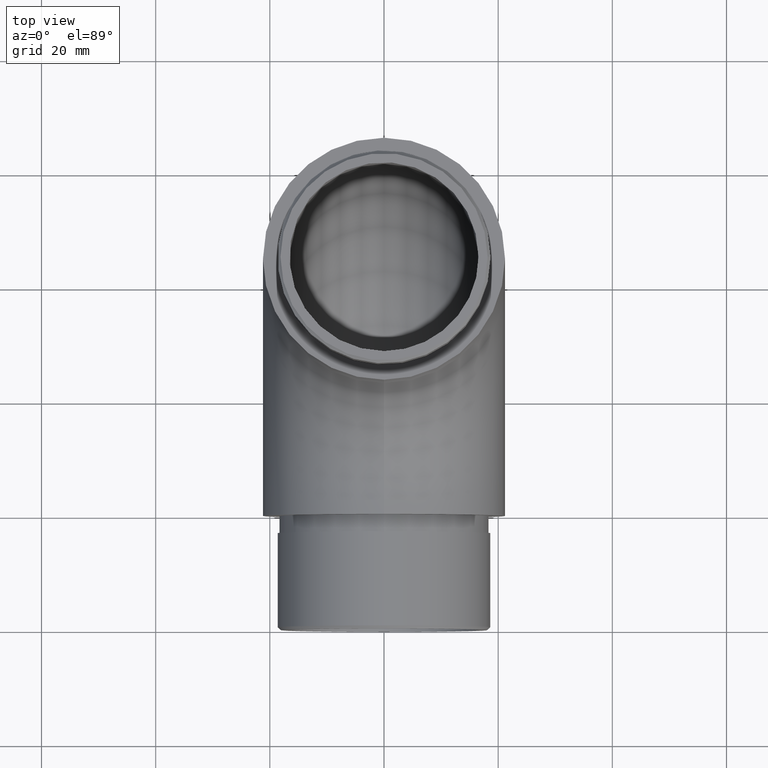
[diagram: clean part render]
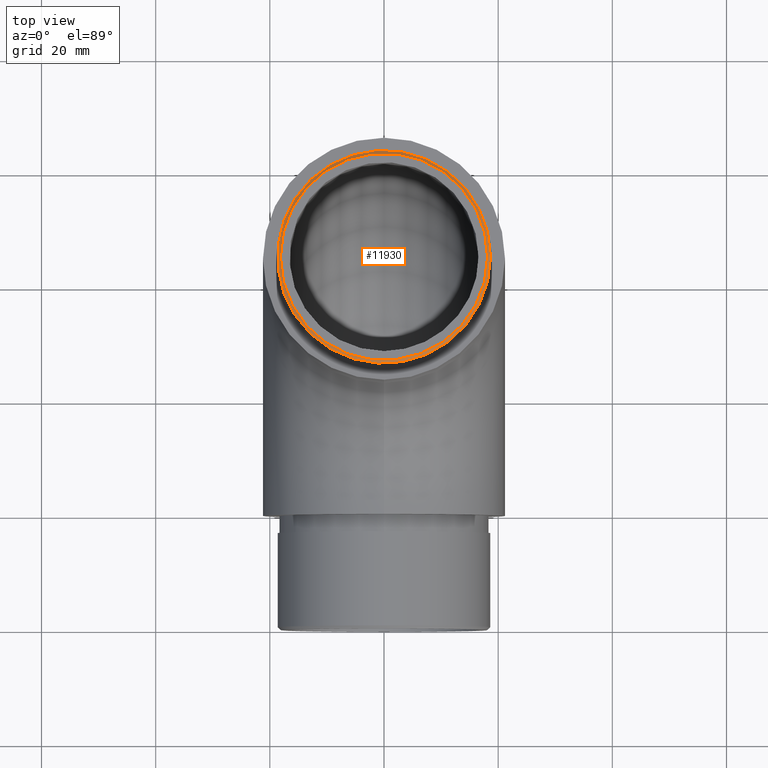
[diagram: same view with one face highlighted and labeled with its STEP entity id]
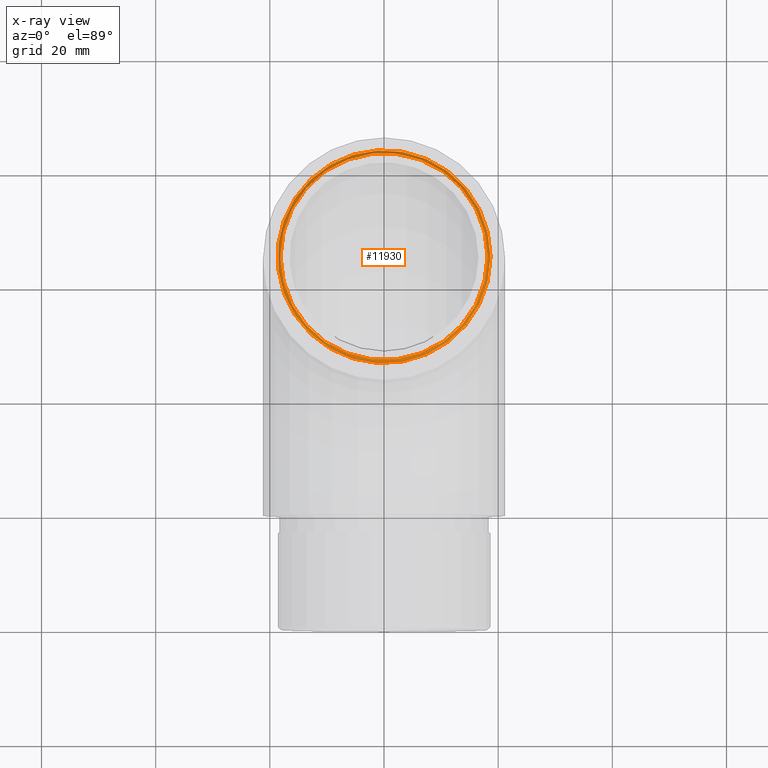
[diagram: x-ray of the same camera — body ghosted, the highlighted face saturated]
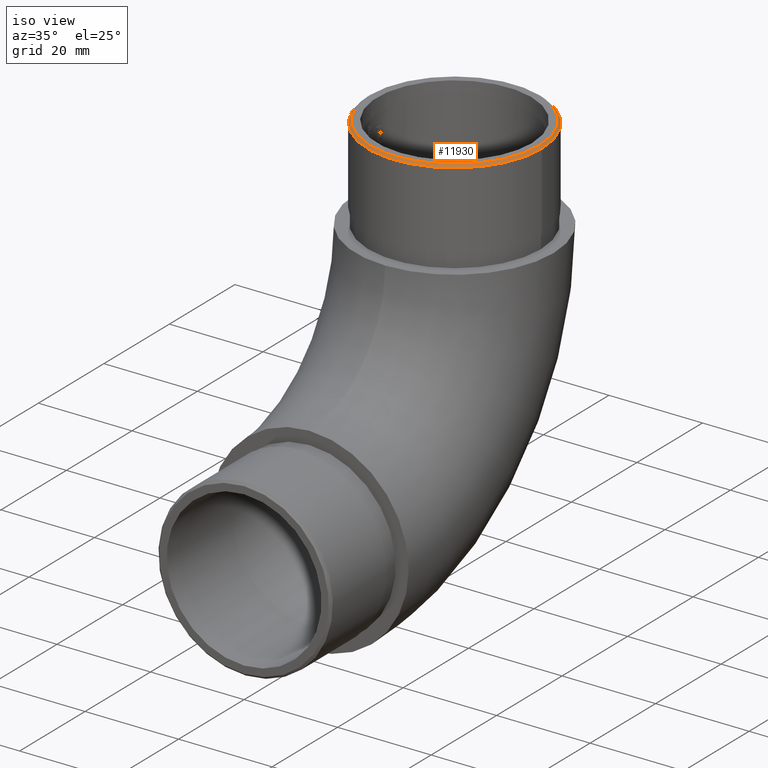
[diagram: same view with one face highlighted and labeled with its STEP entity id]
A machine part, top view. The second image highlights one B-rep face of the part: STEP entity #11930.
The next image is the same camera in x-ray: the body ghosted, the highlighted face saturated — about 0% of this face is hidden behind the body in this view.
A second angle (iso view) of the same face is appended — the face is thin or edge-on in the first view.
In plain terms, the highlighted conical surface has half-angle 45 deg.
Its self-contained STEP definition (entity closure, byte-faithful):
#320 = CIRCLE ( 'NONE', #745, 18.64999999999999900 ) ;
#400 = DIRECTION ( 'NONE',  ( 0.0000000000000000000, 0.0000000000000000000, 1.000000000000000000 ) ) ;
#745 = AXIS2_PLACEMENT_3D ( 'NONE', #4271, #11640, #12705 ) ;
#1020 = ORIENTED_EDGE ( 'NONE', *, *, #2012, .F. ) ;
#2012 = EDGE_CURVE ( 'NONE', #11119, #11119, #320, .T. ) ;
#3062 = CARTESIAN_POINT ( 'NONE',  ( 18.64999999999999900, 44.29999999999999000, 85.00000000000001400 ) ) ;
#4271 = CARTESIAN_POINT ( 'NONE',  ( 0.0000000000000000000, 44.29999999999999000, 85.00000000000001400 ) ) ;
#4394 = CIRCLE ( 'NONE', #5838, 18.15000000000002700 ) ;
#4691 = CARTESIAN_POINT ( 'NONE',  ( 0.0000000000000000000, 44.29999999999999000, 85.50000000000000000 ) ) ;
#5174 = CARTESIAN_POINT ( 'NONE',  ( 18.15000000000002700, 44.29999999999999000, 85.50000000000000000 ) ) ;
#5838 = AXIS2_PLACEMENT_3D ( 'NONE', #4691, #400, #8812 ) ;
#6329 = CARTESIAN_POINT ( 'NONE',  ( 0.0000000000000000000, 44.29999999999999000, 85.50000000000000000 ) ) ;
#7604 = DIRECTION ( 'NONE',  ( -1.000000000000000000, 0.0000000000000000000, 0.0000000000000000000 ) ) ;
#7834 = CONICAL_SURFACE ( 'NONE', #9349, 18.15000000000002700, 0.7853981633974345100 ) ;
#8330 = FACE_OUTER_BOUND ( 'NONE', #12482, .T. ) ;
#8812 = DIRECTION ( 'NONE',  ( 1.000000000000000000, 0.0000000000000000000, 0.0000000000000000000 ) ) ;
#9147 = FACE_BOUND ( 'NONE', #13057, .T. ) ;
#9349 = AXIS2_PLACEMENT_3D ( 'NONE', #6329, #13572, #7604 ) ;
#10456 = VERTEX_POINT ( 'NONE', #5174 ) ;
#11119 = VERTEX_POINT ( 'NONE', #3062 ) ;
#11561 = EDGE_CURVE ( 'NONE', #10456, #10456, #4394, .T. ) ;
#11640 = DIRECTION ( 'NONE',  ( 0.0000000000000000000, 0.0000000000000000000, -1.000000000000000000 ) ) ;
#11930 = ADVANCED_FACE ( 'NONE', ( #8330, #9147 ), #7834, .T. ) ;
#12232 = ORIENTED_EDGE ( 'NONE', *, *, #11561, .F. ) ;
#12482 = EDGE_LOOP ( 'NONE', ( #1020 ) ) ;
#12705 = DIRECTION ( 'NONE',  ( 1.000000000000000000, 0.0000000000000000000, 0.0000000000000000000 ) ) ;
#13057 = EDGE_LOOP ( 'NONE', ( #12232 ) ) ;
#13572 = DIRECTION ( 'NONE',  ( 0.0000000000000000000, 0.0000000000000000000, -1.000000000000000000 ) ) ;